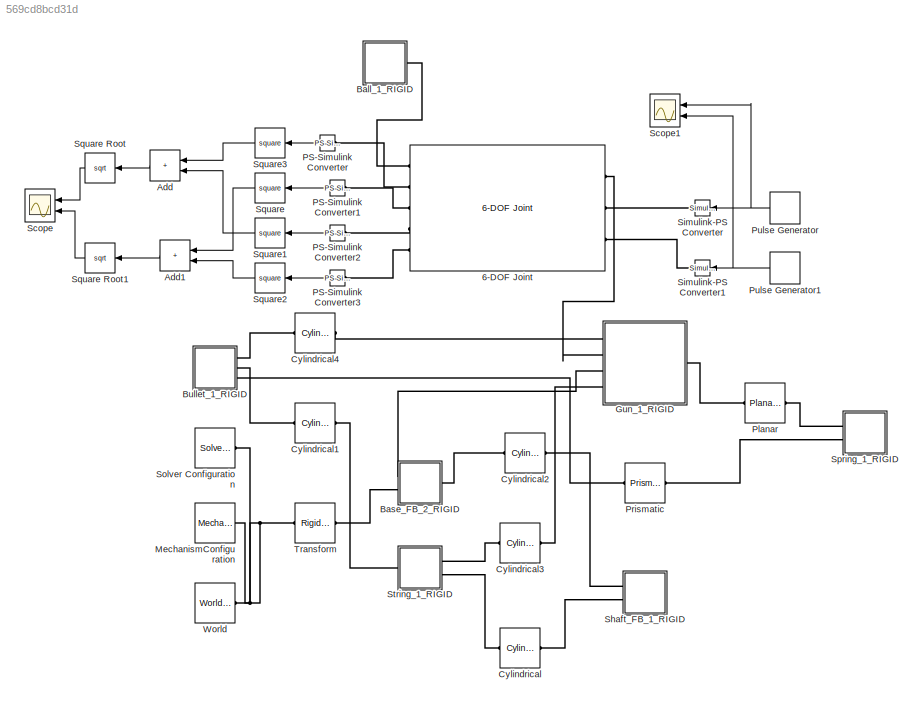
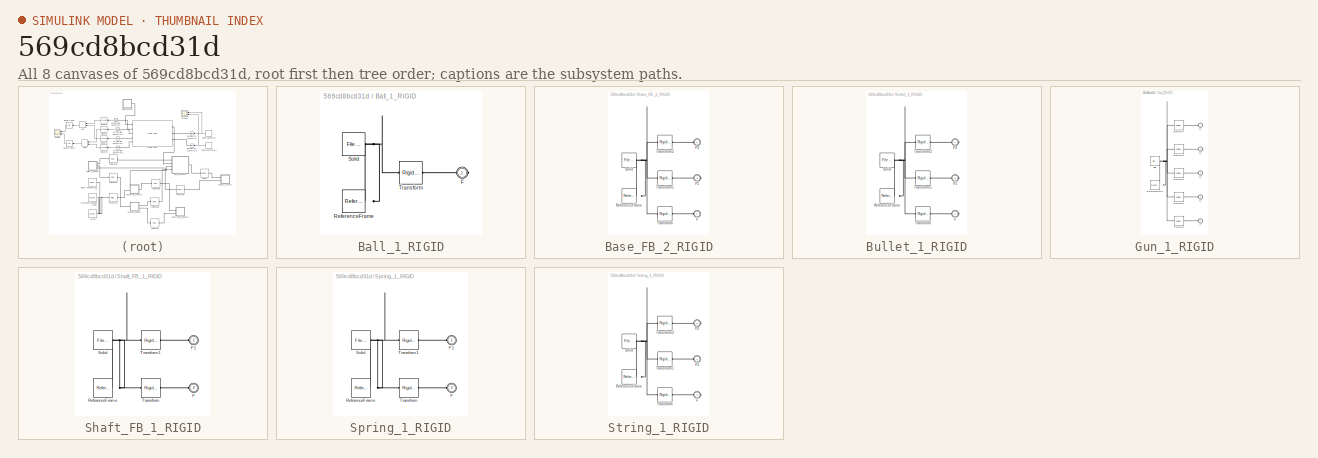
[diagram: thumbnail index - all 8 canvases of the model, root first then tree order]
MODEL slx_569cd8bcd31d
KIND model
CONFIG AbsTol = auto
CONFIG EnableMultiTasking = off
CONFIG FixedStep = auto
CONFIG MaxStep = auto
CONFIG MinStep = auto
CONFIG RelTol = 1e-3
CONFIG SampleTimeConstraint = Unconstrained
CONFIG SolverName = VariableStepAuto
CONFIG StartTime = 0.0
CONFIG StopTime = 0.55
WORKSPACE source: external: MATLAB File  (data not in archive)
BLOCK [Reference] 6-DOF Joint  REF=sm_lib/Joints/6-DOF Joint
  Ports = [0, 0, 0, 0, 0, 3, 5]
  SourceBlock = sm_lib/Joints/6-DOF Joint
  SourceProductBaseCode = MS
  SourceType = 6-DOF Joint
BLOCK [Sum] Add
  IconShape = rectangular
  Ports = [2, 1]
BLOCK [Sum] Add1
  IconShape = rectangular
  Ports = [2, 1]
BLOCK [SubSystem] Ball_1_RIGID
  Ports = [0, 0, 0, 0, 0, 0, 1]
  RequestExecContextInheritance = off
BLOCK [PMIOPort] Ball_1_RIGID/F
  Side = Right
BLOCK [Reference] Ball_1_RIGID/ReferenceFrame  REF=sm_lib/Frames and
Transforms/Reference
Frame
  Ports = [0, 0, 0, 0, 0, 0, 1]
  SourceBlock = sm_lib/Frames and\nTransforms/Reference\nFrame
  SourceProductBaseCode = MS
  SourceType = Reference\nFrame
BLOCK [Reference] Ball_1_RIGID/Solid  REF=sm_lib/Body Elements/File Solid
  Ports = [0, 0, 0, 0, 0, 0, 1]
  SourceBlock = sm_lib/Body Elements/File Solid
  SourceProductBaseCode = MS
  SourceType = File Solid
BLOCK [Reference] Ball_1_RIGID/Transform  REF=sm_lib/Frames and
Transforms/Rigid
Transform
  Ports = [0, 0, 0, 0, 0, 1, 1]
  SourceBlock = sm_lib/Frames and\nTransforms/Rigid\nTransform
  SourceProductBaseCode = MS
  SourceType = Rigid\nTransform
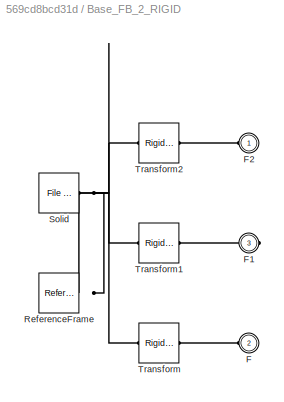
BLOCK [SubSystem] Base_FB_2_RIGID
  Ports = [0, 0, 0, 0, 0, 2, 1]
  RequestExecContextInheritance = off
BLOCK [PMIOPort] Base_FB_2_RIGID/F
  Port = 2
  Side = Left
BLOCK [PMIOPort] Base_FB_2_RIGID/F1
  Port = 3
  Side = Right
BLOCK [PMIOPort] Base_FB_2_RIGID/F2
  Side = Left
BLOCK [Reference] Base_FB_2_RIGID/ReferenceFrame  REF=sm_lib/Frames and
Transforms/Reference
Frame
  Ports = [0, 0, 0, 0, 0, 0, 1]
  SourceBlock = sm_lib/Frames and\nTransforms/Reference\nFrame
  SourceProductBaseCode = MS
  SourceType = Reference\nFrame
BLOCK [Reference] Base_FB_2_RIGID/Solid  REF=sm_lib/Body Elements/File Solid
  Ports = [0, 0, 0, 0, 0, 0, 1]
  SourceBlock = sm_lib/Body Elements/File Solid
  SourceProductBaseCode = MS
  SourceType = File Solid
BLOCK [Reference] Base_FB_2_RIGID/Transform  REF=sm_lib/Frames and
Transforms/Rigid
Transform
  Ports = [0, 0, 0, 0, 0, 1, 1]
  SourceBlock = sm_lib/Frames and\nTransforms/Rigid\nTransform
  SourceProductBaseCode = MS
  SourceType = Rigid\nTransform
BLOCK [Reference] Base_FB_2_RIGID/Transform1  REF=sm_lib/Frames and
Transforms/Rigid
Transform
  Ports = [0, 0, 0, 0, 0, 1, 1]
  SourceBlock = sm_lib/Frames and\nTransforms/Rigid\nTransform
  SourceProductBaseCode = MS
  SourceType = Rigid\nTransform
BLOCK [Reference] Base_FB_2_RIGID/Transform2  REF=sm_lib/Frames and
Transforms/Rigid
Transform
  Ports = [0, 0, 0, 0, 0, 1, 1]
  SourceBlock = sm_lib/Frames and\nTransforms/Rigid\nTransform
  SourceProductBaseCode = MS
  SourceType = Rigid\nTransform
BLOCK [SubSystem] Bullet_1_RIGID
  Ports = [0, 0, 0, 0, 0, 0, 3]
  RequestExecContextInheritance = off
BLOCK [PMIOPort] Bullet_1_RIGID/F
  Port = 2
  Side = Right
BLOCK [PMIOPort] Bullet_1_RIGID/F1
  Port = 3
  Side = Right
BLOCK [PMIOPort] Bullet_1_RIGID/F2
  Side = Right
BLOCK [Reference] Bullet_1_RIGID/ReferenceFrame  REF=sm_lib/Frames and
Transforms/Reference
Frame
  Ports = [0, 0, 0, 0, 0, 0, 1]
  SourceBlock = sm_lib/Frames and\nTransforms/Reference\nFrame
  SourceProductBaseCode = MS
  SourceType = Reference\nFrame
BLOCK [Reference] Bullet_1_RIGID/Solid  REF=sm_lib/Body Elements/File Solid
  Ports = [0, 0, 0, 0, 0, 0, 1]
  SourceBlock = sm_lib/Body Elements/File Solid
  SourceProductBaseCode = MS
  SourceType = File Solid
BLOCK [Reference] Bullet_1_RIGID/Transform  REF=sm_lib/Frames and
Transforms/Rigid
Transform
  Ports = [0, 0, 0, 0, 0, 1, 1]
  SourceBlock = sm_lib/Frames and\nTransforms/Rigid\nTransform
  SourceProductBaseCode = MS
  SourceType = Rigid\nTransform
BLOCK [Reference] Bullet_1_RIGID/Transform1  REF=sm_lib/Frames and
Transforms/Rigid
Transform
  Ports = [0, 0, 0, 0, 0, 1, 1]
  SourceBlock = sm_lib/Frames and\nTransforms/Rigid\nTransform
  SourceProductBaseCode = MS
  SourceType = Rigid\nTransform
BLOCK [Reference] Bullet_1_RIGID/Transform2  REF=sm_lib/Frames and
Transforms/Rigid
Transform
  Ports = [0, 0, 0, 0, 0, 1, 1]
  SourceBlock = sm_lib/Frames and\nTransforms/Rigid\nTransform
  SourceProductBaseCode = MS
  SourceType = Rigid\nTransform
BLOCK [Reference] Cylindrical  REF=sm_lib/Joints/Cylindrical
Joint
  Ports = [0, 0, 0, 0, 0, 1, 1]
  SourceBlock = sm_lib/Joints/Cylindrical\nJoint
  SourceProductBaseCode = MS
  SourceType = Cylindrical\nJoint
BLOCK [Reference] Cylindrical1  REF=sm_lib/Joints/Cylindrical
Joint
  Ports = [0, 0, 0, 0, 0, 1, 1]
  SourceBlock = sm_lib/Joints/Cylindrical\nJoint
  SourceProductBaseCode = MS
  SourceType = Cylindrical\nJoint
BLOCK [Reference] Cylindrical2  REF=sm_lib/Joints/Cylindrical
Joint
  Ports = [0, 0, 0, 0, 0, 1, 1]
  SourceBlock = sm_lib/Joints/Cylindrical\nJoint
  SourceProductBaseCode = MS
  SourceType = Cylindrical\nJoint
BLOCK [Reference] Cylindrical3  REF=sm_lib/Joints/Cylindrical
Joint
  Ports = [0, 0, 0, 0, 0, 1, 1]
  SourceBlock = sm_lib/Joints/Cylindrical\nJoint
  SourceProductBaseCode = MS
  SourceType = Cylindrical\nJoint
BLOCK [Reference] Cylindrical4  REF=sm_lib/Joints/Cylindrical
Joint
  Ports = [0, 0, 0, 0, 0, 1, 1]
  SourceBlock = sm_lib/Joints/Cylindrical\nJoint
  SourceProductBaseCode = MS
  SourceType = Cylindrical\nJoint
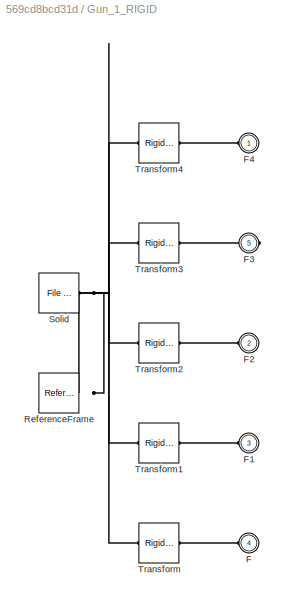
BLOCK [SubSystem] Gun_1_RIGID
  Ports = [0, 0, 0, 0, 0, 4, 1]
  RequestExecContextInheritance = off
BLOCK [PMIOPort] Gun_1_RIGID/F
  Port = 4
  Side = Left
BLOCK [PMIOPort] Gun_1_RIGID/F1
  Port = 3
  Side = Left
BLOCK [PMIOPort] Gun_1_RIGID/F2
  Port = 2
  Side = Left
BLOCK [PMIOPort] Gun_1_RIGID/F3
  Port = 5
  Side = Right
BLOCK [PMIOPort] Gun_1_RIGID/F4
  Side = Left
BLOCK [Reference] Gun_1_RIGID/ReferenceFrame  REF=sm_lib/Frames and
Transforms/Reference
Frame
  Ports = [0, 0, 0, 0, 0, 0, 1]
  SourceBlock = sm_lib/Frames and\nTransforms/Reference\nFrame
  SourceProductBaseCode = MS
  SourceType = Reference\nFrame
BLOCK [Reference] Gun_1_RIGID/Solid  REF=sm_lib/Body Elements/File Solid
  Ports = [0, 0, 0, 0, 0, 0, 1]
  SourceBlock = sm_lib/Body Elements/File Solid
  SourceProductBaseCode = MS
  SourceType = File Solid
BLOCK [Reference] Gun_1_RIGID/Transform  REF=sm_lib/Frames and
Transforms/Rigid
Transform
  Ports = [0, 0, 0, 0, 0, 1, 1]
  SourceBlock = sm_lib/Frames and\nTransforms/Rigid\nTransform
  SourceProductBaseCode = MS
  SourceType = Rigid\nTransform
BLOCK [Reference] Gun_1_RIGID/Transform1  REF=sm_lib/Frames and
Transforms/Rigid
Transform
  Ports = [0, 0, 0, 0, 0, 1, 1]
  SourceBlock = sm_lib/Frames and\nTransforms/Rigid\nTransform
  SourceProductBaseCode = MS
  SourceType = Rigid\nTransform
BLOCK [Reference] Gun_1_RIGID/Transform2  REF=sm_lib/Frames and
Transforms/Rigid
Transform
  Ports = [0, 0, 0, 0, 0, 1, 1]
  SourceBlock = sm_lib/Frames and\nTransforms/Rigid\nTransform
  SourceProductBaseCode = MS
  SourceType = Rigid\nTransform
BLOCK [Reference] Gun_1_RIGID/Transform3  REF=sm_lib/Frames and
Transforms/Rigid
Transform
  Ports = [0, 0, 0, 0, 0, 1, 1]
  SourceBlock = sm_lib/Frames and\nTransforms/Rigid\nTransform
  SourceProductBaseCode = MS
  SourceType = Rigid\nTransform
BLOCK [Reference] Gun_1_RIGID/Transform4  REF=sm_lib/Frames and
Transforms/Rigid
Transform
  Ports = [0, 0, 0, 0, 0, 1, 1]
  SourceBlock = sm_lib/Frames and\nTransforms/Rigid\nTransform
  SourceProductBaseCode = MS
  SourceType = Rigid\nTransform
BLOCK [Reference] MechanismConfiguration  REF=sm_lib/Utilities/Mechanism
Configuration
  Ports = [0, 0, 0, 0, 0, 0, 1]
  SourceBlock = sm_lib/Utilities/Mechanism\nConfiguration
  SourceProductBaseCode = MS
  SourceType = Mechanism\nConfiguration
BLOCK [Reference] PS-Simulink Converter  REF=nesl_utility/PS-Simulink
Converter
  Ports = [0, 1, 0, 0, 0, 1]
  SourceBlock = nesl_utility/PS-Simulink\nConverter
  SourceProductBaseCode = PW,SS
  SourceType = PS-Simulink\nConverter
BLOCK [Reference] PS-Simulink Converter1  REF=nesl_utility/PS-Simulink
Converter
  Ports = [0, 1, 0, 0, 0, 1]
  SourceBlock = nesl_utility/PS-Simulink\nConverter
  SourceProductBaseCode = PW,SS
  SourceType = PS-Simulink\nConverter
BLOCK [Reference] PS-Simulink Converter2  REF=nesl_utility/PS-Simulink
Converter
  Ports = [0, 1, 0, 0, 0, 1]
  SourceBlock = nesl_utility/PS-Simulink\nConverter
  SourceProductBaseCode = PW,SS
  SourceType = PS-Simulink\nConverter
BLOCK [Reference] PS-Simulink Converter3  REF=nesl_utility/PS-Simulink
Converter
  Ports = [0, 1, 0, 0, 0, 1]
  SourceBlock = nesl_utility/PS-Simulink\nConverter
  SourceProductBaseCode = PW,SS
  SourceType = PS-Simulink\nConverter
BLOCK [Reference] Planar  REF=sm_lib/Joints/Planar Joint
  Ports = [0, 0, 0, 0, 0, 1, 1]
  SourceBlock = sm_lib/Joints/Planar Joint
  SourceProductBaseCode = MS
  SourceType = Planar Joint
BLOCK [Reference] Prismatic  REF=sm_lib/Joints/Prismatic
Joint
  Ports = [0, 0, 0, 0, 0, 1, 1]
  SourceBlock = sm_lib/Joints/Prismatic\nJoint
  SourceProductBaseCode = MS
  SourceType = Prismatic\nJoint
BLOCK [DiscretePulseGenerator] Pulse Generator
  Amplitude = 4
  Period = 10
  PhaseDelay = 0.25
  Ports = [0, 1]
  PulseType = Time based
  PulseWidth = 2.5
BLOCK [DiscretePulseGenerator] Pulse Generator1
  Amplitude = -4
  Period = 10
  Ports = [0, 1]
  PulseType = Time based
  PulseWidth = 2.5
BLOCK [Scope] Scope
  Floating = off
  NumInputPorts = 2
  Ports = [2]
  ScopeSpecificationString = Simulink.scopes.TimeScopeBlockCfg('CurrentConfiguration', extmgr.ConfigurationSet(extmgr.Configuration('Core','General UI',true),extmgr.Configuration('Core','Source UI',true),extmgr.Configuration('Sources','WiredSimulink',true),extmgr.Configuration('Visuals','Time Domain',true),extmgr.Configuration('Tools','Plot Navigation',true),extmgr.Configuration('Tools','Measurements',true)),'Version','2021a'...<+1ch>
BLOCK [Scope] Scope1
  Floating = off
  NumInputPorts = 2
  Ports = [2]
  ScopeSpecificationString = Simulink.scopes.TimeScopeBlockCfg('CurrentConfiguration', extmgr.ConfigurationSet(extmgr.Configuration('Core','General UI',true),extmgr.Configuration('Core','Source UI',true),extmgr.Configuration('Sources','WiredSimulink',true,'DataLoggingVariableName','ScopeData1'),extmgr.Configuration('Visuals','Time Domain',true,'SerializedDisplays',{struct('MinYLimReal','-0.5','MaxYLimReal','4.5','YLabelReal',...<+1426ch>
BLOCK [SubSystem] Shaft_FB_1_RIGID
  Ports = [0, 0, 0, 0, 0, 2]
  RequestExecContextInheritance = off
BLOCK [PMIOPort] Shaft_FB_1_RIGID/F
  Port = 2
  Side = Left
BLOCK [PMIOPort] Shaft_FB_1_RIGID/F1
  Side = Left
BLOCK [Reference] Shaft_FB_1_RIGID/ReferenceFrame  REF=sm_lib/Frames and
Transforms/Reference
Frame
  Ports = [0, 0, 0, 0, 0, 0, 1]
  SourceBlock = sm_lib/Frames and\nTransforms/Reference\nFrame
  SourceProductBaseCode = MS
  SourceType = Reference\nFrame
BLOCK [Reference] Shaft_FB_1_RIGID/Solid  REF=sm_lib/Body Elements/File Solid
  Ports = [0, 0, 0, 0, 0, 0, 1]
  SourceBlock = sm_lib/Body Elements/File Solid
  SourceProductBaseCode = MS
  SourceType = File Solid
BLOCK [Reference] Shaft_FB_1_RIGID/Transform  REF=sm_lib/Frames and
Transforms/Rigid
Transform
  Ports = [0, 0, 0, 0, 0, 1, 1]
  SourceBlock = sm_lib/Frames and\nTransforms/Rigid\nTransform
  SourceProductBaseCode = MS
  SourceType = Rigid\nTransform
BLOCK [Reference] Shaft_FB_1_RIGID/Transform1  REF=sm_lib/Frames and
Transforms/Rigid
Transform
  Ports = [0, 0, 0, 0, 0, 1, 1]
  SourceBlock = sm_lib/Frames and\nTransforms/Rigid\nTransform
  SourceProductBaseCode = MS
  SourceType = Rigid\nTransform
BLOCK [Reference] Simulink-PS Converter  REF=nesl_utility/Simulink-PS
Converter
  Ports = [1, 0, 0, 0, 0, 0, 1]
  SourceBlock = nesl_utility/Simulink-PS\nConverter
  SourceProductBaseCode = PW,SS
  SourceType = Simulink-PS\nConverter
BLOCK [Reference] Simulink-PS Converter1  REF=nesl_utility/Simulink-PS
Converter
  Ports = [1, 0, 0, 0, 0, 0, 1]
  SourceBlock = nesl_utility/Simulink-PS\nConverter
  SourceProductBaseCode = PW,SS
  SourceType = Simulink-PS\nConverter
BLOCK [Reference] Solver Configuration  REF=nesl_utility/Solver
Configuration
  Ports = [0, 0, 0, 0, 0, 0, 1]
  SourceBlock = nesl_utility/Solver\nConfiguration
  SourceProductBaseCode = PW,SS
  SourceType = Solver\nConfiguration
BLOCK [SubSystem] Spring_1_RIGID
  Ports = [0, 0, 0, 0, 0, 2]
  RequestExecContextInheritance = off
BLOCK [PMIOPort] Spring_1_RIGID/F
  Port = 2
  Side = Left
BLOCK [PMIOPort] Spring_1_RIGID/F1
  Side = Left
BLOCK [Reference] Spring_1_RIGID/ReferenceFrame  REF=sm_lib/Frames and
Transforms/Reference
Frame
  Ports = [0, 0, 0, 0, 0, 0, 1]
  SourceBlock = sm_lib/Frames and\nTransforms/Reference\nFrame
  SourceProductBaseCode = MS
  SourceType = Reference\nFrame
BLOCK [Reference] Spring_1_RIGID/Solid  REF=sm_lib/Body Elements/File Solid
  Ports = [0, 0, 0, 0, 0, 0, 1]
  SourceBlock = sm_lib/Body Elements/File Solid
  SourceProductBaseCode = MS
  SourceType = File Solid
BLOCK [Reference] Spring_1_RIGID/Transform  REF=sm_lib/Frames and
Transforms/Rigid
Transform
  Ports = [0, 0, 0, 0, 0, 1, 1]
  SourceBlock = sm_lib/Frames and\nTransforms/Rigid\nTransform
  SourceProductBaseCode = MS
  SourceType = Rigid\nTransform
BLOCK [Reference] Spring_1_RIGID/Transform1  REF=sm_lib/Frames and
Transforms/Rigid
Transform
  Ports = [0, 0, 0, 0, 0, 1, 1]
  SourceBlock = sm_lib/Frames and\nTransforms/Rigid\nTransform
  SourceProductBaseCode = MS
  SourceType = Rigid\nTransform
BLOCK [Math] Square
  Operator = square
  Ports = [1, 1]
BLOCK [Sqrt] Square Root
BLOCK [Sqrt] Square Root1
BLOCK [Math] Square1
  Operator = square
  Ports = [1, 1]
BLOCK [Math] Square2
  Operator = square
  Ports = [1, 1]
BLOCK [Math] Square3
  Operator = square
  Ports = [1, 1]
BLOCK [SubSystem] String_1_RIGID
  Ports = [0, 0, 0, 0, 0, 1, 2]
  RequestExecContextInheritance = off
BLOCK [PMIOPort] String_1_RIGID/F
  Port = 3
  Side = Right
BLOCK [PMIOPort] String_1_RIGID/F1
  Side = Left
BLOCK [PMIOPort] String_1_RIGID/F2
  Port = 2
  Side = Right
BLOCK [Reference] String_1_RIGID/ReferenceFrame  REF=sm_lib/Frames and
Transforms/Reference
Frame
  Ports = [0, 0, 0, 0, 0, 0, 1]
  SourceBlock = sm_lib/Frames and\nTransforms/Reference\nFrame
  SourceProductBaseCode = MS
  SourceType = Reference\nFrame
BLOCK [Reference] String_1_RIGID/Solid  REF=sm_lib/Body Elements/File Solid
  Ports = [0, 0, 0, 0, 0, 0, 1]
  SourceBlock = sm_lib/Body Elements/File Solid
  SourceProductBaseCode = MS
  SourceType = File Solid
BLOCK [Reference] String_1_RIGID/Transform  REF=sm_lib/Frames and
Transforms/Rigid
Transform
  Ports = [0, 0, 0, 0, 0, 1, 1]
  SourceBlock = sm_lib/Frames and\nTransforms/Rigid\nTransform
  SourceProductBaseCode = MS
  SourceType = Rigid\nTransform
BLOCK [Reference] String_1_RIGID/Transform1  REF=sm_lib/Frames and
Transforms/Rigid
Transform
  Ports = [0, 0, 0, 0, 0, 1, 1]
  SourceBlock = sm_lib/Frames and\nTransforms/Rigid\nTransform
  SourceProductBaseCode = MS
  SourceType = Rigid\nTransform
BLOCK [Reference] String_1_RIGID/Transform2  REF=sm_lib/Frames and
Transforms/Rigid
Transform
  Ports = [0, 0, 0, 0, 0, 1, 1]
  SourceBlock = sm_lib/Frames and\nTransforms/Rigid\nTransform
  SourceProductBaseCode = MS
  SourceType = Rigid\nTransform
BLOCK [Reference] Transform  REF=sm_lib/Frames and
Transforms/Rigid
Transform
  Ports = [0, 0, 0, 0, 0, 1, 1]
  SourceBlock = sm_lib/Frames and\nTransforms/Rigid\nTransform
  SourceProductBaseCode = MS
  SourceType = Rigid\nTransform
BLOCK [Reference] World  REF=sm_lib/Frames and
Transforms/World Frame
  Ports = [0, 0, 0, 0, 0, 0, 1]
  SourceBlock = sm_lib/Frames and\nTransforms/World Frame
  SourceProductBaseCode = MS
  SourceType = World Frame
LINE Add1:1 -> Square Root1:1
LINE Add:1 -> Square Root:1
LINE PS-Simulink Converter1:1 -> Square:1
LINE PS-Simulink Converter2:1 -> Square1:1
LINE PS-Simulink Converter3:1 -> Square2:1
LINE PS-Simulink Converter:1 -> Square3:1
NET Pulse Generator1:1 -> Scope1:2, Simulink-PS Converter1:1
NET Pulse Generator:1 -> Scope1:1, Simulink-PS Converter:1
LINE Square Root1:1 -> Scope:2
LINE Square Root:1 -> Scope:1
LINE Square1:1 -> Add:2
LINE Square2:1 -> Add1:2
LINE Square3:1 -> Add:1
LINE Square:1 -> Add1:1
PLINE 6-DOF Joint:LConn1 -- Gun_1_RIGID:LConn2
PLINE 6-DOF Joint:LConn2 -- Simulink-PS Converter:RConn1
PLINE 6-DOF Joint:LConn3 -- Simulink-PS Converter1:RConn1
PLINE 6-DOF Joint:RConn1 -- Ball_1_RIGID:RConn1
PLINE 6-DOF Joint:RConn2 -- PS-Simulink Converter:LConn1
PLINE 6-DOF Joint:RConn3 -- PS-Simulink Converter1:LConn1
PLINE 6-DOF Joint:RConn4 -- PS-Simulink Converter2:LConn1
PLINE 6-DOF Joint:RConn5 -- PS-Simulink Converter3:LConn1
PLINE Ball_1_RIGID/F:RConn1 -- Ball_1_RIGID/Transform:RConn1
PNET net1: Ball_1_RIGID/ReferenceFrame:RConn1 -- Ball_1_RIGID/Solid:RConn1 -- Ball_1_RIGID/Transform:LConn1
PLINE Base_FB_2_RIGID/F1:RConn1 -- Base_FB_2_RIGID/Transform1:RConn1
PLINE Base_FB_2_RIGID/F2:RConn1 -- Base_FB_2_RIGID/Transform2:RConn1
PLINE Base_FB_2_RIGID/F:RConn1 -- Base_FB_2_RIGID/Transform:RConn1
PNET net2: Base_FB_2_RIGID/ReferenceFrame:RConn1 -- Base_FB_2_RIGID/Solid:RConn1 -- Base_FB_2_RIGID/Transform1:LConn1 -- Base_FB_2_RIGID/Transform2:LConn1 -- Base_FB_2_RIGID/Transform:LConn1
PLINE Base_FB_2_RIGID:LConn1 -- Gun_1_RIGID:LConn3
PLINE Base_FB_2_RIGID:LConn2 -- Transform:RConn1
PLINE Base_FB_2_RIGID:RConn1 -- Cylindrical2:LConn1
PLINE Bullet_1_RIGID/F1:RConn1 -- Bullet_1_RIGID/Transform1:RConn1
PLINE Bullet_1_RIGID/F2:RConn1 -- Bullet_1_RIGID/Transform2:RConn1
PLINE Bullet_1_RIGID/F:RConn1 -- Bullet_1_RIGID/Transform:RConn1
PNET net3: Bullet_1_RIGID/ReferenceFrame:RConn1 -- Bullet_1_RIGID/Solid:RConn1 -- Bullet_1_RIGID/Transform1:LConn1 -- Bullet_1_RIGID/Transform2:LConn1 -- Bullet_1_RIGID/Transform:LConn1
PLINE Bullet_1_RIGID:RConn1 -- Cylindrical4:LConn1
PLINE Bullet_1_RIGID:RConn2 -- Cylindrical1:LConn1
PLINE Bullet_1_RIGID:RConn3 -- Prismatic:LConn1
PLINE Cylindrical1:RConn1 -- String_1_RIGID:LConn1
PLINE Cylindrical2:RConn1 -- Shaft_FB_1_RIGID:LConn1
PLINE Cylindrical3:LConn1 -- String_1_RIGID:RConn1
PLINE Cylindrical3:RConn1 -- Gun_1_RIGID:LConn4
PLINE Cylindrical4:RConn1 -- Gun_1_RIGID:LConn1
PLINE Cylindrical:LConn1 -- String_1_RIGID:RConn2
PLINE Cylindrical:RConn1 -- Shaft_FB_1_RIGID:LConn2
PLINE Gun_1_RIGID/F1:RConn1 -- Gun_1_RIGID/Transform1:RConn1
PLINE Gun_1_RIGID/F2:RConn1 -- Gun_1_RIGID/Transform2:RConn1
PLINE Gun_1_RIGID/F3:RConn1 -- Gun_1_RIGID/Transform3:RConn1
PLINE Gun_1_RIGID/F4:RConn1 -- Gun_1_RIGID/Transform4:RConn1
PLINE Gun_1_RIGID/F:RConn1 -- Gun_1_RIGID/Transform:RConn1
PNET net4: Gun_1_RIGID/ReferenceFrame:RConn1 -- Gun_1_RIGID/Solid:RConn1 -- Gun_1_RIGID/Transform1:LConn1 -- Gun_1_RIGID/Transform2:LConn1 -- Gun_1_RIGID/Transform3:LConn1 -- Gun_1_RIGID/Transform4:LConn1 -- Gun_1_RIGID/Transform:LConn1
PLINE Gun_1_RIGID:RConn1 -- Planar:LConn1
PNET net5: MechanismConfiguration:RConn1 -- Solver Configuration:RConn1 -- Transform:LConn1 -- World:RConn1
PLINE Planar:RConn1 -- Spring_1_RIGID:LConn1
PLINE Prismatic:RConn1 -- Spring_1_RIGID:LConn2
PLINE Shaft_FB_1_RIGID/F1:RConn1 -- Shaft_FB_1_RIGID/Transform1:RConn1
PLINE Shaft_FB_1_RIGID/F:RConn1 -- Shaft_FB_1_RIGID/Transform:RConn1
PNET net6: Shaft_FB_1_RIGID/ReferenceFrame:RConn1 -- Shaft_FB_1_RIGID/Solid:RConn1 -- Shaft_FB_1_RIGID/Transform1:LConn1 -- Shaft_FB_1_RIGID/Transform:LConn1
PLINE Spring_1_RIGID/F1:RConn1 -- Spring_1_RIGID/Transform1:RConn1
PLINE Spring_1_RIGID/F:RConn1 -- Spring_1_RIGID/Transform:RConn1
PNET net7: Spring_1_RIGID/ReferenceFrame:RConn1 -- Spring_1_RIGID/Solid:RConn1 -- Spring_1_RIGID/Transform1:LConn1 -- Spring_1_RIGID/Transform:LConn1
PLINE String_1_RIGID/F1:RConn1 -- String_1_RIGID/Transform1:RConn1
PLINE String_1_RIGID/F2:RConn1 -- String_1_RIGID/Transform2:RConn1
PLINE String_1_RIGID/F:RConn1 -- String_1_RIGID/Transform:RConn1
PNET net8: String_1_RIGID/ReferenceFrame:RConn1 -- String_1_RIGID/Solid:RConn1 -- String_1_RIGID/Transform1:LConn1 -- String_1_RIGID/Transform2:LConn1 -- String_1_RIGID/Transform:LConn1
note: NET lines group one-source signal fan-out (src -> all destinations, sorted); 1:1 wires keep LINE; PNET lines group multi-terminal physical nets as a canonical sorted terminal list (undirected conserving connections); 2-terminal nets keep the pairwise PLINE form
